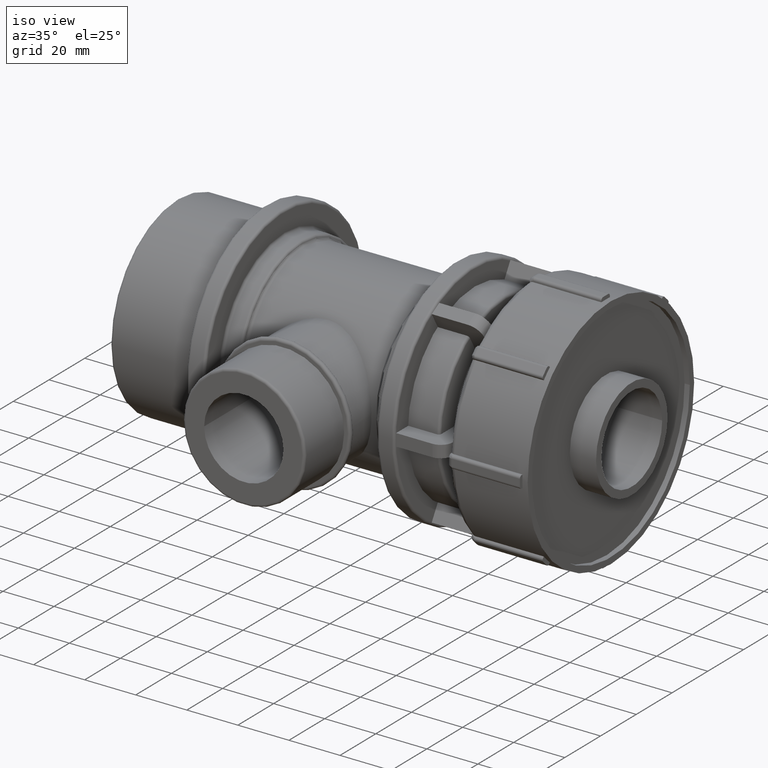
[diagram: clean part render]
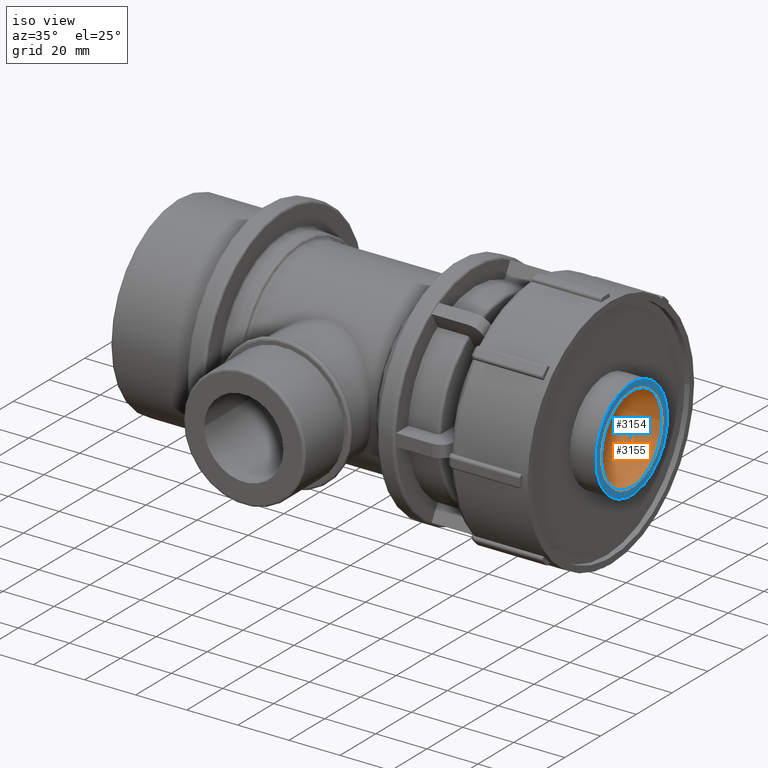
[diagram: same view with the hole feature highlighted: cylindrical wall and planar end face, labeled with their STEP entity ids]
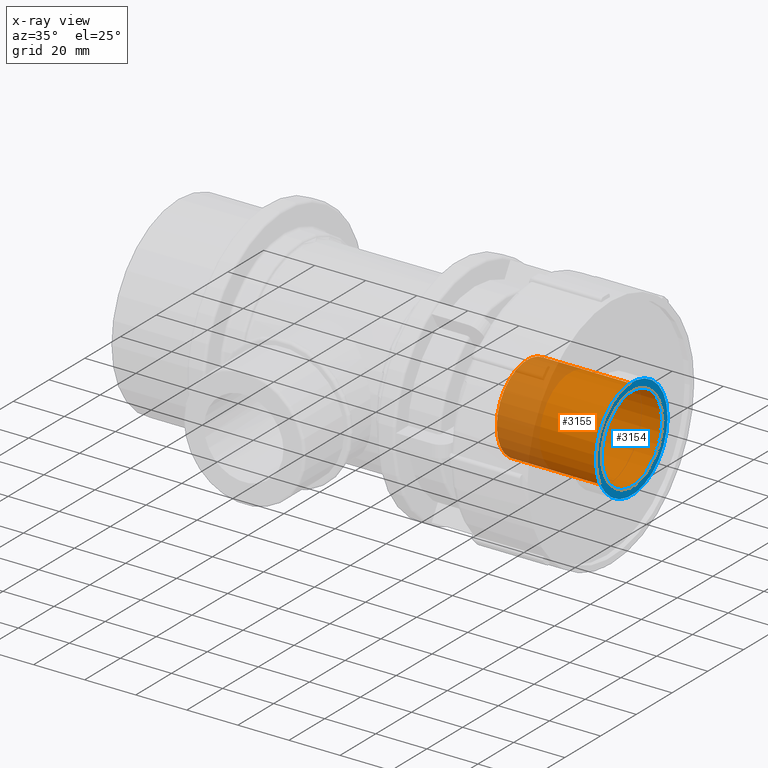
[diagram: x-ray of the same camera — body ghosted, the hole faces saturated]
A machine part, iso view. The highlighted faces form one hole feature of diameter 34 mm: the cylindrical wall (entity #3155, orange) and its adjacent planar end face (entity #3154, blue) — they share a circular edge in the B-rep.
The next image is the same camera in x-ray (body ghosted, the hole faces saturated) — the bore reads through the body.
Wall:
#683=CIRCLE('',#3516,17.);
#684=CIRCLE('',#3518,17.);
#777=FACE_BOUND('',#1200,.T.);
#948=FACE_OUTER_BOUND('',#1199,.T.);
#1199=EDGE_LOOP('',(#2715));
#1200=EDGE_LOOP('',(#2716));
#1548=VERTEX_POINT('',#5905);
#1549=VERTEX_POINT('',#5908);
#1954=EDGE_CURVE('',#1548,#1548,#683,.T.);
#1955=EDGE_CURVE('',#1549,#1549,#684,.T.);
#2715=ORIENTED_EDGE('',*,*,#1955,.F.);
#2716=ORIENTED_EDGE('',*,*,#1954,.T.);
#2989=CYLINDRICAL_SURFACE('',#3517,17.);
#3155=ADVANCED_FACE('',(#948,#777),#2989,.F.);
#3516=AXIS2_PLACEMENT_3D('',#5906,#4294,#4295);
#3517=AXIS2_PLACEMENT_3D('',#5907,#4296,#4297);
#3518=AXIS2_PLACEMENT_3D('',#5909,#4298,#4299);
#4294=DIRECTION('center_axis',(1.,0.,0.));
#4295=DIRECTION('ref_axis',(0.,0.,-1.));
#4296=DIRECTION('center_axis',(1.,0.,0.));
#4297=DIRECTION('ref_axis',(0.,1.,0.));
#4298=DIRECTION('center_axis',(1.,0.,0.));
#4299=DIRECTION('ref_axis',(0.,0.,-1.));
#5905=CARTESIAN_POINT('',(102.25,17.,0.));
#5906=CARTESIAN_POINT('Origin',(102.25,0.,0.));
#5907=CARTESIAN_POINT('Origin',(81.75,0.,0.));
#5908=CARTESIAN_POINT('',(61.25,17.,0.));
#5909=CARTESIAN_POINT('Origin',(61.25,0.,0.));
End face:
#467=PLANE('',#3515);
#682=CIRCLE('',#3514,20.);
#683=CIRCLE('',#3516,17.);
#776=FACE_BOUND('',#1198,.T.);
#947=FACE_OUTER_BOUND('',#1197,.T.);
#1197=EDGE_LOOP('',(#2713));
#1198=EDGE_LOOP('',(#2714));
#1547=VERTEX_POINT('',#5902);
#1548=VERTEX_POINT('',#5905);
#1953=EDGE_CURVE('',#1547,#1547,#682,.T.);
#1954=EDGE_CURVE('',#1548,#1548,#683,.T.);
#2713=ORIENTED_EDGE('',*,*,#1953,.T.);
#2714=ORIENTED_EDGE('',*,*,#1954,.F.);
#3154=ADVANCED_FACE('',(#947,#776),#467,.T.);
#3514=AXIS2_PLACEMENT_3D('',#5903,#4290,#4291);
#3515=AXIS2_PLACEMENT_3D('',#5904,#4292,#4293);
#3516=AXIS2_PLACEMENT_3D('',#5906,#4294,#4295);
#4290=DIRECTION('center_axis',(1.,0.,0.));
#4291=DIRECTION('ref_axis',(0.,0.,-1.));
#4292=DIRECTION('center_axis',(1.,0.,0.));
#4293=DIRECTION('ref_axis',(0.,0.,-1.));
#4294=DIRECTION('center_axis',(1.,0.,0.));
#4295=DIRECTION('ref_axis',(0.,0.,-1.));
#5902=CARTESIAN_POINT('',(102.25,20.,0.));
#5903=CARTESIAN_POINT('Origin',(102.25,0.,0.));
#5904=CARTESIAN_POINT('Origin',(102.25,17.,0.));
#5905=CARTESIAN_POINT('',(102.25,17.,0.));
#5906=CARTESIAN_POINT('Origin',(102.25,0.,0.));